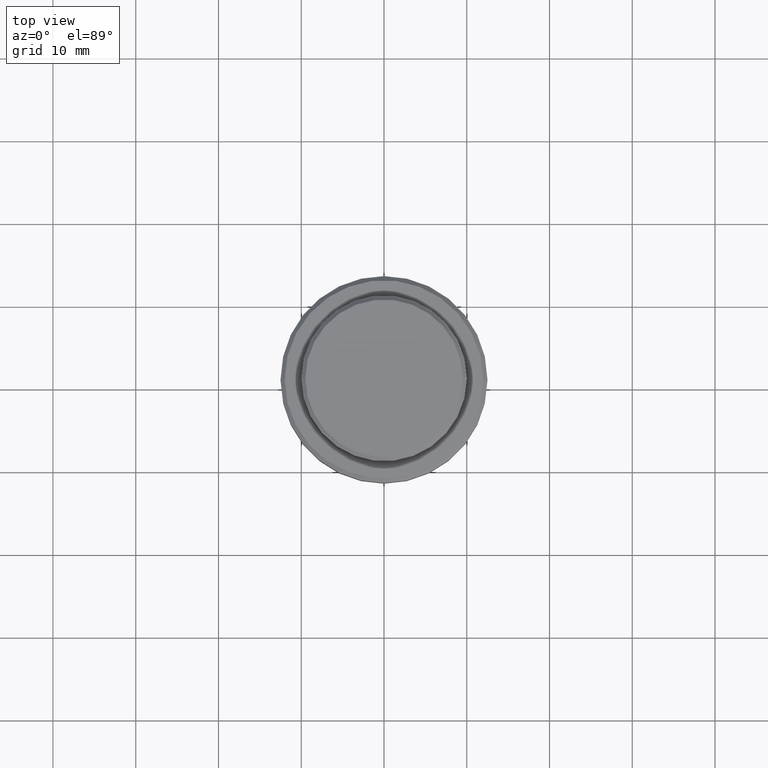
[diagram: clean part render]
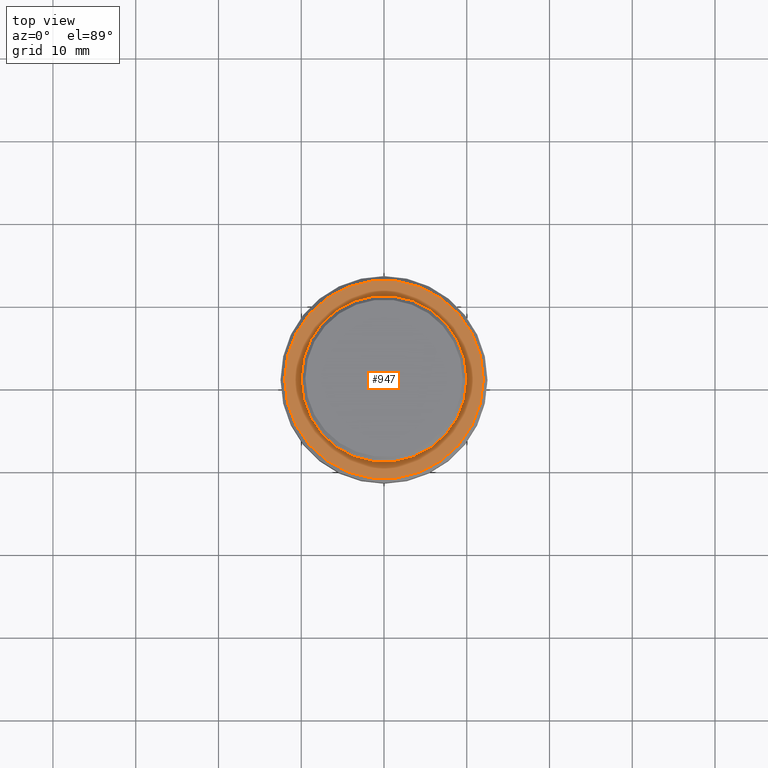
[diagram: same view with one face highlighted and labeled with its STEP entity id]
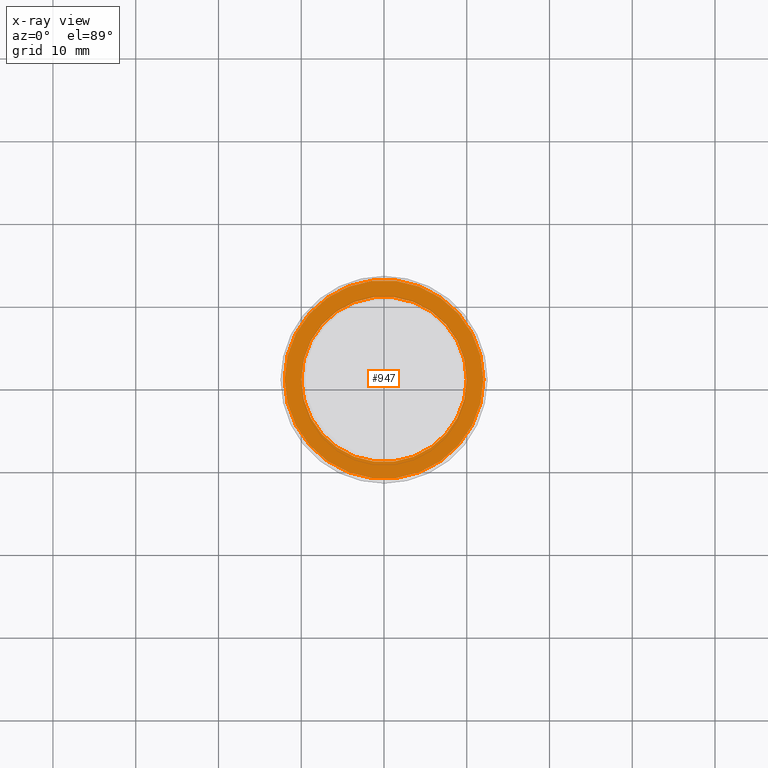
[diagram: x-ray of the same camera — body ghosted, the highlighted face saturated]
A machine part, top view. The second image highlights one B-rep face of the part: STEP entity #947.
The next image is the same camera in x-ray: the body ghosted, the highlighted face saturated — about 0% of this face is hidden behind the body in this view.
In plain terms, the highlighted planar face has unit normal (0, -0, 1).
Its self-contained STEP definition (entity closure, byte-faithful):
#38 = VERTEX_POINT ( 'NONE', #790 ) ;
#40 = EDGE_CURVE ( 'NONE', #38, #698, #756, .T. ) ;
#48 = AXIS2_PLACEMENT_3D ( 'NONE', #882, #1081, #870 ) ;
#52 = CARTESIAN_POINT ( 'NONE',  ( 0.000000000000000000, 0.000000000000000000, -9.000000000000000000 ) ) ;
#76 = EDGE_LOOP ( 'NONE', ( #931, #954 ) ) ;
#102 = AXIS2_PLACEMENT_3D ( 'NONE', #906, #1234, #1216 ) ;
#131 = PLANE ( 'NONE',  #102 ) ;
#137 = AXIS2_PLACEMENT_3D ( 'NONE', #905, #1116, #1208 ) ;
#241 = EDGE_CURVE ( 'NONE', #695, #672, #635, .T. ) ;
#367 = CIRCLE ( 'NONE', #48, 9.999999999999992895 ) ;
#377 = EDGE_CURVE ( 'NONE', #672, #695, #367, .T. ) ;
#447 = CARTESIAN_POINT ( 'NONE',  ( 9.999999999999992895, 0.000000000000000000, -9.000000000000000000 ) ) ;
#575 = CARTESIAN_POINT ( 'NONE',  ( -12.00000000000001066, 0.000000000000000000, -9.000000000000000000 ) ) ;
#596 = DIRECTION ( 'NONE',  ( 1.000000000000000000, 0.000000000000000000, 0.000000000000000000 ) ) ;
#629 = CARTESIAN_POINT ( 'NONE',  ( -9.999999999999992895, 1.224646799147352468E-15, -9.000000000000000000 ) ) ;
#635 = CIRCLE ( 'NONE', #1087, 9.999999999999992895 ) ;
#664 = CIRCLE ( 'NONE', #948, 12.00000000000001066 ) ;
#672 = VERTEX_POINT ( 'NONE', #447 ) ;
#695 = VERTEX_POINT ( 'NONE', #629 ) ;
#698 = VERTEX_POINT ( 'NONE', #575 ) ;
#756 = CIRCLE ( 'NONE', #137, 12.00000000000001066 ) ;
#790 = CARTESIAN_POINT ( 'NONE',  ( 12.00000000000001066, 1.500192328955508326E-15, -9.000000000000000000 ) ) ;
#791 = FACE_BOUND ( 'NONE', #1254, .T. ) ;
#861 = CARTESIAN_POINT ( 'NONE',  ( 0.000000000000000000, 0.000000000000000000, -9.000000000000000000 ) ) ;
#870 = DIRECTION ( 'NONE',  ( 1.000000000000000000, 0.000000000000000000, 0.000000000000000000 ) ) ;
#882 = CARTESIAN_POINT ( 'NONE',  ( 0.000000000000000000, 0.000000000000000000, -9.000000000000000000 ) ) ;
#902 = FACE_OUTER_BOUND ( 'NONE', #76, .T. ) ;
#905 = CARTESIAN_POINT ( 'NONE',  ( 0.000000000000000000, 0.000000000000000000, -9.000000000000000000 ) ) ;
#906 = CARTESIAN_POINT ( 'NONE',  ( 0.000000000000000000, 9.499999999999992895, -9.000000000000000000 ) ) ;
#907 = DIRECTION ( 'NONE',  ( 1.000000000000000000, 0.000000000000000000, 0.000000000000000000 ) ) ;
#931 = ORIENTED_EDGE ( 'NONE', *, *, #1080, .T. ) ;
#947 = ADVANCED_FACE ( 'NONE', ( #902, #791 ), #131, .T. ) ;
#948 = AXIS2_PLACEMENT_3D ( 'NONE', #52, #1146, #596 ) ;
#954 = ORIENTED_EDGE ( 'NONE', *, *, #40, .T. ) ;
#1031 = ORIENTED_EDGE ( 'NONE', *, *, #241, .T. ) ;
#1080 = EDGE_CURVE ( 'NONE', #698, #38, #664, .T. ) ;
#1081 = DIRECTION ( 'NONE',  ( 0.000000000000000000, 0.000000000000000000, -1.000000000000000000 ) ) ;
#1087 = AXIS2_PLACEMENT_3D ( 'NONE', #861, #1295, #907 ) ;
#1116 = DIRECTION ( 'NONE',  ( -0.000000000000000000, -0.000000000000000000, 1.000000000000000000 ) ) ;
#1146 = DIRECTION ( 'NONE',  ( -0.000000000000000000, -0.000000000000000000, 1.000000000000000000 ) ) ;
#1179 = ORIENTED_EDGE ( 'NONE', *, *, #377, .T. ) ;
#1208 = DIRECTION ( 'NONE',  ( 1.000000000000000000, 0.000000000000000000, 0.000000000000000000 ) ) ;
#1216 = DIRECTION ( 'NONE',  ( 1.000000000000000000, 0.000000000000000000, 0.000000000000000000 ) ) ;
#1234 = DIRECTION ( 'NONE',  ( 0.000000000000000000, -0.000000000000000000, 1.000000000000000000 ) ) ;
#1254 = EDGE_LOOP ( 'NONE', ( #1179, #1031 ) ) ;
#1295 = DIRECTION ( 'NONE',  ( 0.000000000000000000, 0.000000000000000000, -1.000000000000000000 ) ) ;